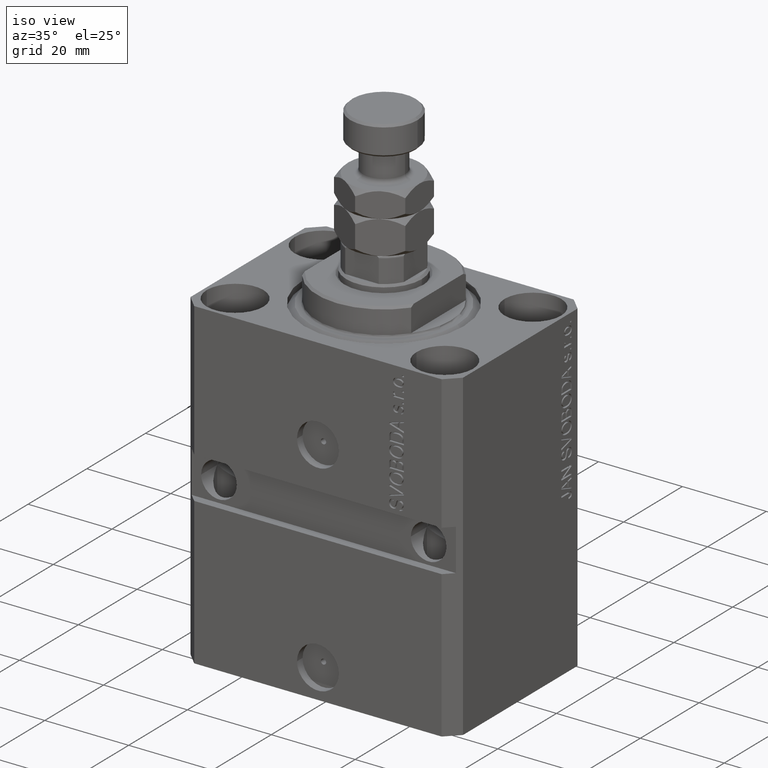
[diagram: clean part render]
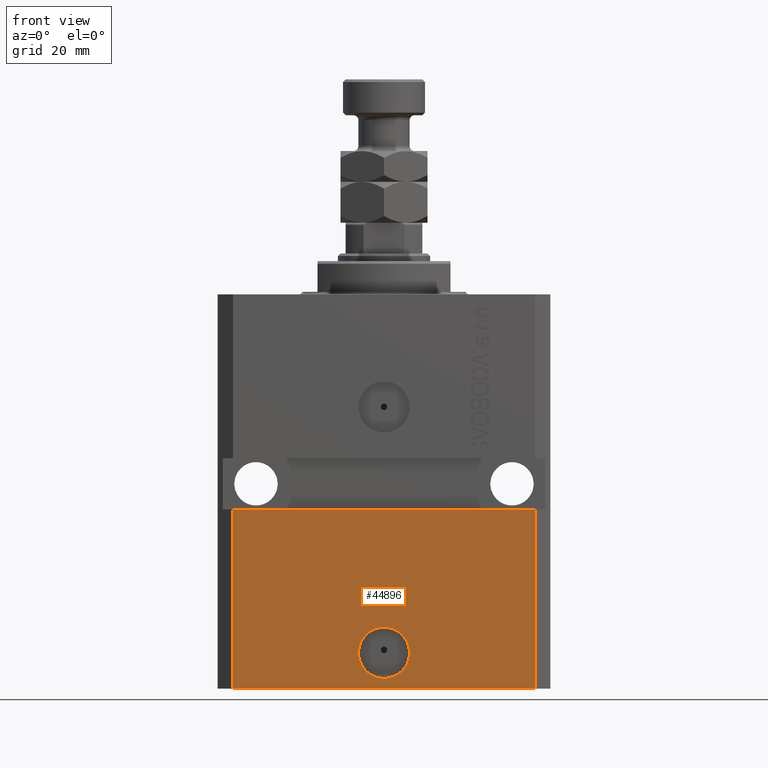
[diagram: tour spotlight — one face highlighted and labeled with its STEP entity id]
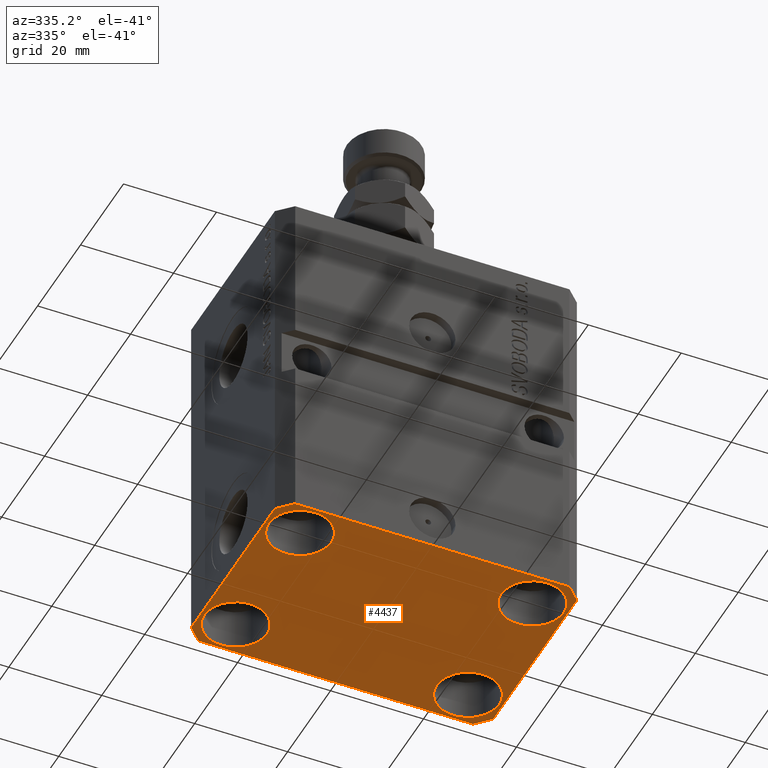
[diagram: tour spotlight — one face highlighted and labeled with its STEP entity id]
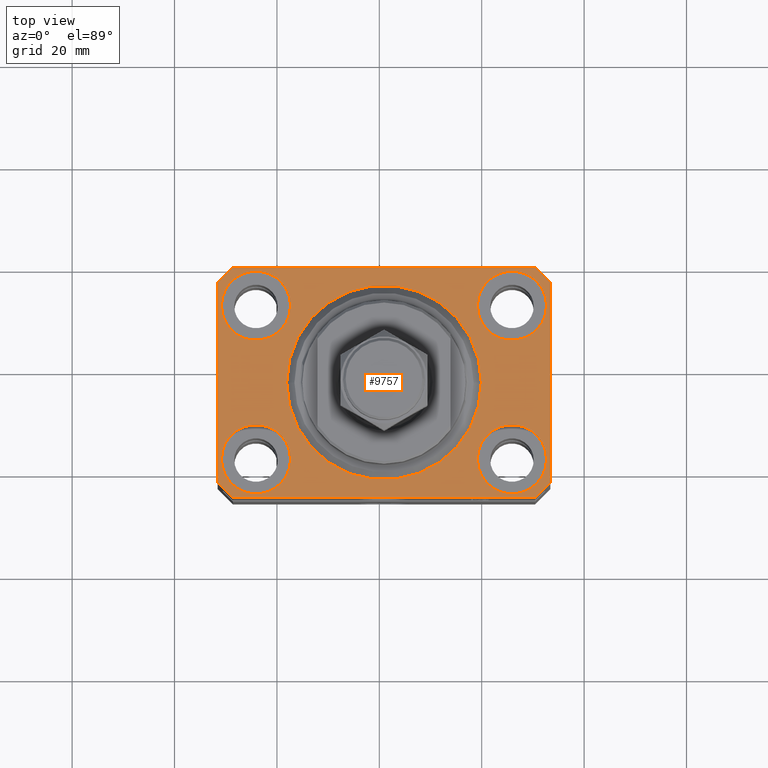
[diagram: tour spotlight — one face highlighted and labeled with its STEP entity id]
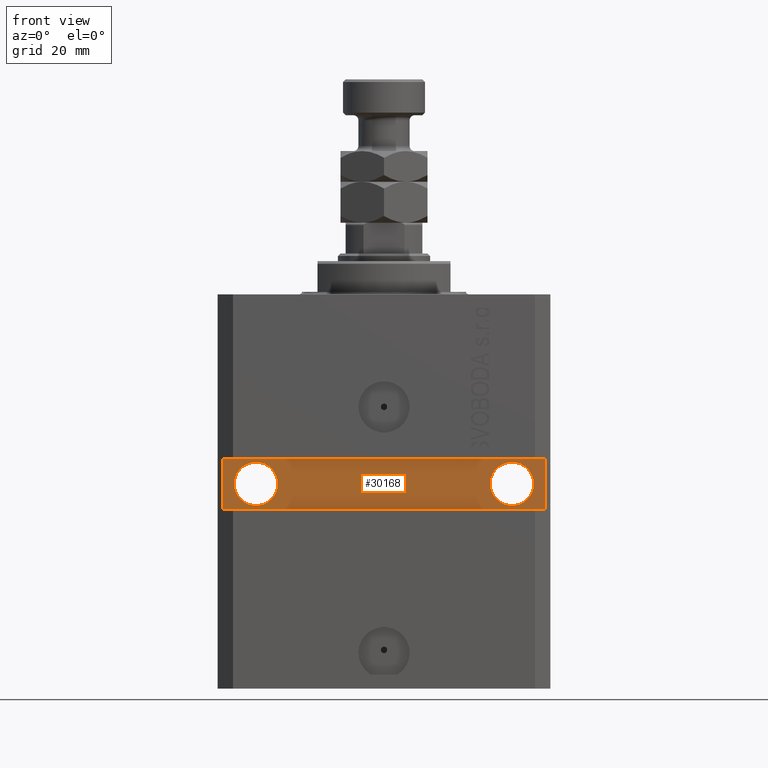
[diagram: tour spotlight — one face highlighted and labeled with its STEP entity id]
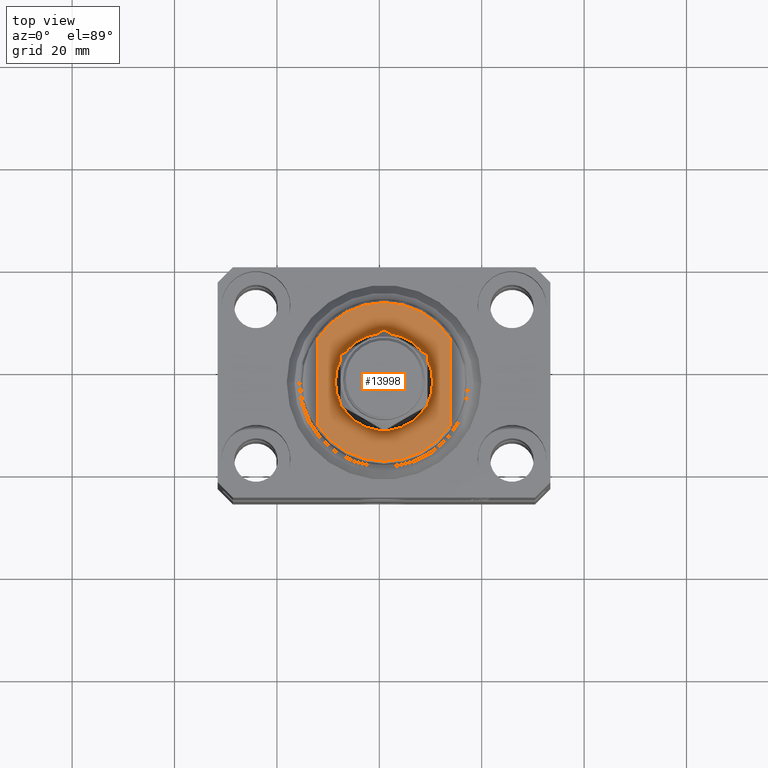
[diagram: tour spotlight — one face highlighted and labeled with its STEP entity id]
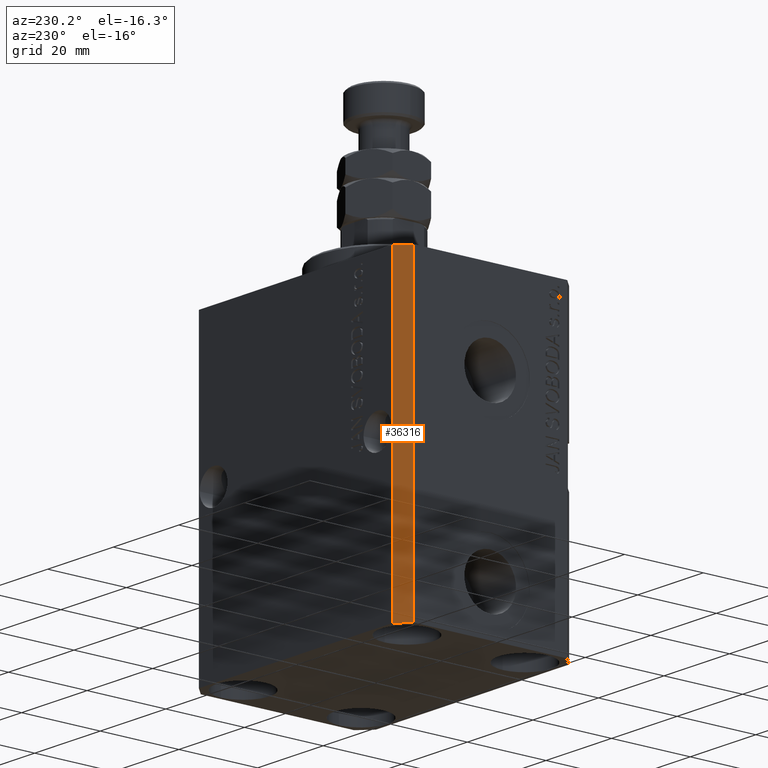
[diagram: tour spotlight — one face highlighted and labeled with its STEP entity id]
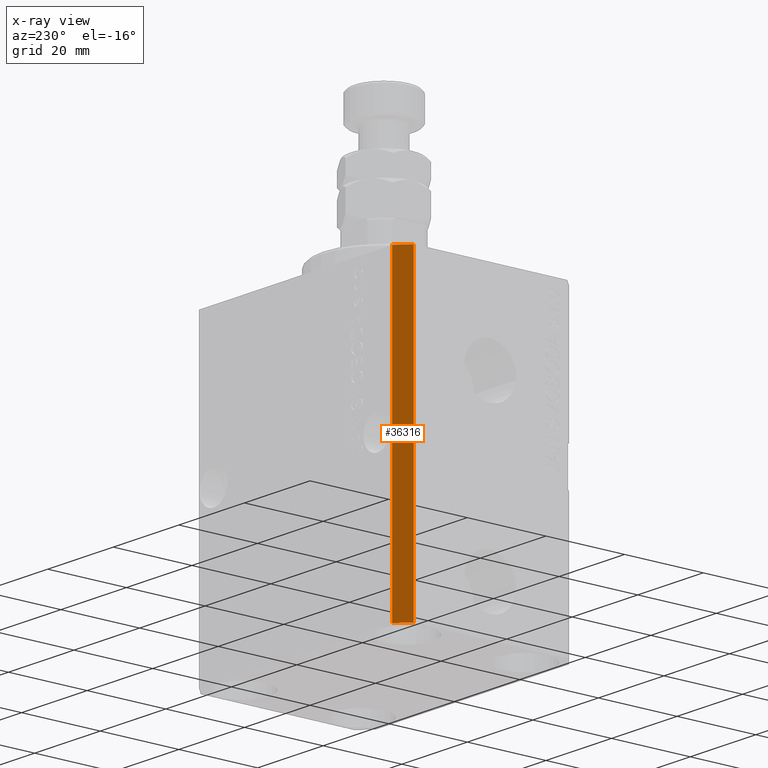
[diagram: x-ray of the same camera — body ghosted, this tour face saturated]
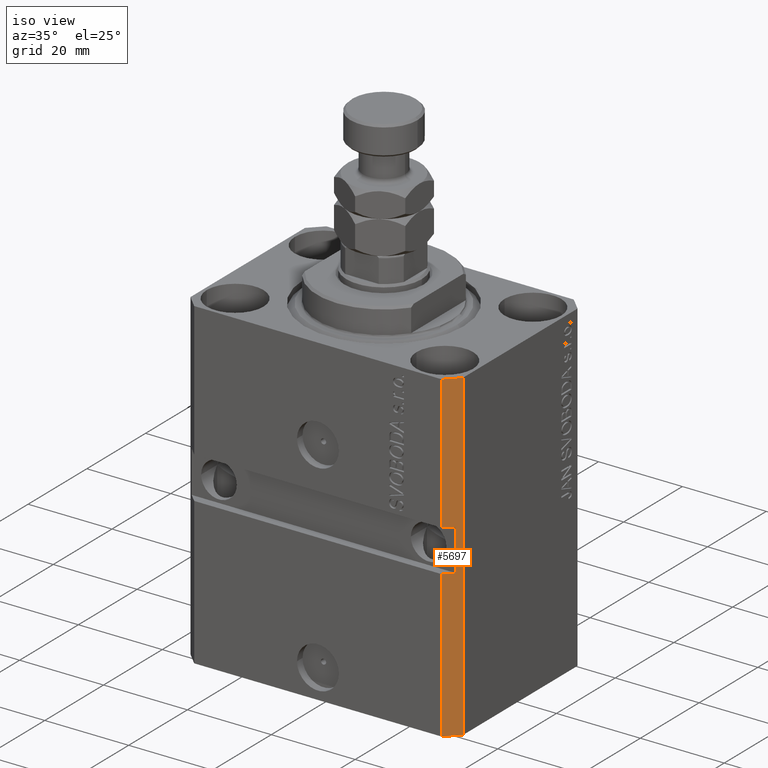
[diagram: tour spotlight — one face highlighted and labeled with its STEP entity id]
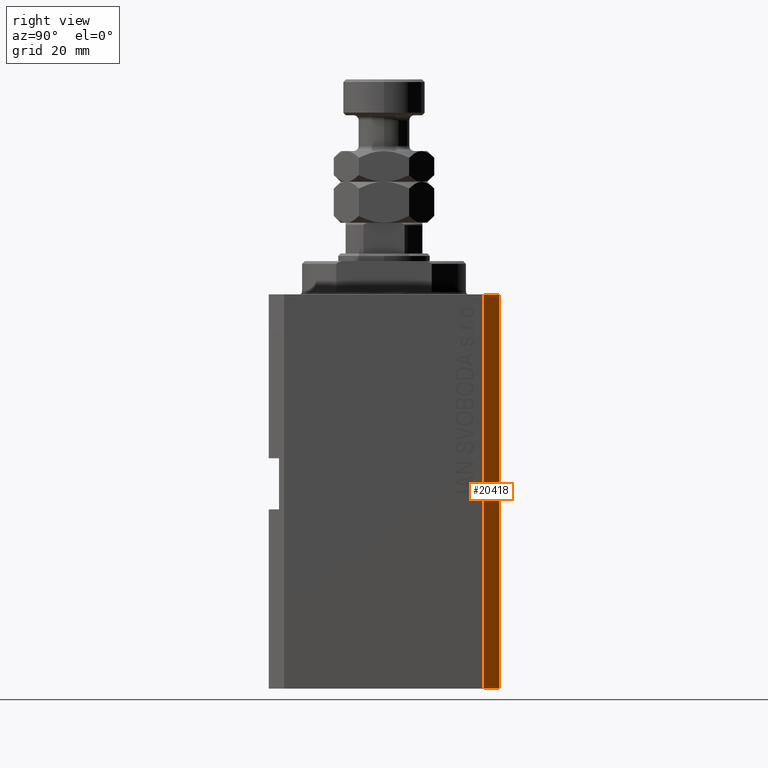
[diagram: tour spotlight — one face highlighted and labeled with its STEP entity id]
A machine part: a face-by-face anatomy tour. The part has 949 B-rep faces; the first image is the clean iso view, then the 8 largest visible faces are spotlighted one at a time (largest first), each with its STEP entity span.

Face 1 — front view, entity #44896. In plain terms, the highlighted planar face has unit normal (0, -1, 0).
Definition (entity closure, byte-faithful):
#996 = VERTEX_POINT ( 'NONE', #22054 ) ;
#1477 = DIRECTION ( 'NONE',  ( 1.000000000000000000, 0.000000000000000000, 0.000000000000000000 ) ) ;
#2216 = VERTEX_POINT ( 'NONE', #4034 ) ;
#3018 = EDGE_CURVE ( 'NONE', #4562, #5914, #34458, .T. ) ;
#3776 = LINE ( 'NONE', #14986, #27370 ) ;
#3929 = AXIS2_PLACEMENT_3D ( 'NONE', #7336, #32704, #1477 ) ;
#4034 = CARTESIAN_POINT ( 'NONE',  ( 29.49999999999650413, -22.49999999999949196, -77.00000000000000000 ) ) ;
#4387 = ORIENTED_EDGE ( 'NONE', *, *, #3018, .F. ) ;
#4562 = VERTEX_POINT ( 'NONE', #12062 ) ;
#4587 = PLANE ( 'NONE',  #5354 ) ;
#5354 = AXIS2_PLACEMENT_3D ( 'NONE', #5510, #36729, #44627 ) ;
#5510 = CARTESIAN_POINT ( 'NONE',  ( -29.49999999999650413, -22.49999999999949907, -77.00000000000000000 ) ) ;
#5914 = VERTEX_POINT ( 'NONE', #42472 ) ;
#6274 = EDGE_CURVE ( 'NONE', #6283, #24711, #43574, .T. ) ;
#6283 = VERTEX_POINT ( 'NONE', #18917 ) ;
#7174 = CARTESIAN_POINT ( 'NONE',  ( -29.49999999999650413, -22.49999999999949907, -77.00000000000000000 ) ) ;
#7336 = CARTESIAN_POINT ( 'NONE',  ( 2.646188353185214061E-15, -22.49999999999949551, -69.99999999999998579 ) ) ;
#8826 = VECTOR ( 'NONE', #31863, 1000.000000000000000 ) ;
#8882 = CARTESIAN_POINT ( 'NONE',  ( -32.49999999999650413, -22.49999999999949907, -41.99999999999999289 ) ) ;
#11542 = LINE ( 'NONE', #35754, #22076 ) ;
#12062 = CARTESIAN_POINT ( 'NONE',  ( -5.000000000000002665, -22.49999999999949551, -69.99999999999998579 ) ) ;
#13593 = CIRCLE ( 'NONE', #3929, 5.000000000000005329 ) ;
#14593 = DIRECTION ( 'NONE',  ( 0.000000000000000000, 0.000000000000000000, 1.000000000000000000 ) ) ;
#14951 = CARTESIAN_POINT ( 'NONE',  ( 29.49999999999650058, -22.49999999999949196, -41.99999999999998579 ) ) ;
#14986 = CARTESIAN_POINT ( 'NONE',  ( -29.49999999999650413, -22.49999999999949907, -77.00000000000000000 ) ) ;
#15295 = EDGE_CURVE ( 'NONE', #5914, #4562, #13593, .T. ) ;
#18917 = CARTESIAN_POINT ( 'NONE',  ( -29.49999999999650413, -22.49999999999949907, -41.99999999999999289 ) ) ;
#19061 = FACE_BOUND ( 'NONE', #23248, .T. ) ;
#20347 = EDGE_LOOP ( 'NONE', ( #26762, #43331, #32593, #28972 ) ) ;
#22054 = CARTESIAN_POINT ( 'NONE',  ( -29.49999999999650413, -22.49999999999949907, -77.00000000000000000 ) ) ;
#22076 = VECTOR ( 'NONE', #14593, 1000.000000000000000 ) ;
#23248 = EDGE_LOOP ( 'NONE', ( #30827, #4387 ) ) ;
#24711 = VERTEX_POINT ( 'NONE', #14951 ) ;
#26762 = ORIENTED_EDGE ( 'NONE', *, *, #6274, .F. ) ;
#27370 = VECTOR ( 'NONE', #28962, 1000.000000000000000 ) ;
#28315 = EDGE_CURVE ( 'NONE', #2216, #24711, #11542, .T. ) ;
#28962 = DIRECTION ( 'NONE',  ( 1.000000000000000000, 1.176083712526788232E-16, 0.000000000000000000 ) ) ;
#28972 = ORIENTED_EDGE ( 'NONE', *, *, #28315, .T. ) ;
#30827 = ORIENTED_EDGE ( 'NONE', *, *, #15295, .F. ) ;
#31863 = DIRECTION ( 'NONE',  ( 0.000000000000000000, 0.000000000000000000, 1.000000000000000000 ) ) ;
#32593 = ORIENTED_EDGE ( 'NONE', *, *, #35321, .T. ) ;
#32704 = DIRECTION ( 'NONE',  ( 1.176083712526788232E-16, -1.000000000000000000, 0.000000000000000000 ) ) ;
#32966 = EDGE_CURVE ( 'NONE', #996, #6283, #38839, .T. ) ;
#33912 = FACE_OUTER_BOUND ( 'NONE', #20347, .T. ) ;
#34458 = CIRCLE ( 'NONE', #38175, 5.000000000000005329 ) ;
#34628 = CARTESIAN_POINT ( 'NONE',  ( 2.646188353185214061E-15, -22.49999999999949551, -69.99999999999998579 ) ) ;
#34853 = DIRECTION ( 'NONE',  ( 1.000000000000000000, 0.000000000000000000, 0.000000000000000000 ) ) ;
#35321 = EDGE_CURVE ( 'NONE', #996, #2216, #3776, .T. ) ;
#35754 = CARTESIAN_POINT ( 'NONE',  ( 29.49999999999650413, -22.49999999999949196, -77.00000000000000000 ) ) ;
#36729 = DIRECTION ( 'NONE',  ( 1.176083712526788232E-16, -1.000000000000000000, 0.000000000000000000 ) ) ;
#38175 = AXIS2_PLACEMENT_3D ( 'NONE', #34628, #38341, #34853 ) ;
#38341 = DIRECTION ( 'NONE',  ( 1.176083712526788232E-16, -1.000000000000000000, 0.000000000000000000 ) ) ;
#38839 = LINE ( 'NONE', #7174, #8826 ) ;
#40518 = VECTOR ( 'NONE', #44265, 1000.000000000000000 ) ;
#42472 = CARTESIAN_POINT ( 'NONE',  ( 5.000000000000007994, -22.49999999999949551, -69.99999999999998579 ) ) ;
#43331 = ORIENTED_EDGE ( 'NONE', *, *, #32966, .F. ) ;
#43574 = LINE ( 'NONE', #8882, #40518 ) ;
#44265 = DIRECTION ( 'NONE',  ( 1.000000000000000000, 1.067522139062765303E-16, 1.067522139062765303E-16 ) ) ;
#44627 = DIRECTION ( 'NONE',  ( 1.000000000000000000, 1.176083712526788232E-16, 0.000000000000000000 ) ) ;
#44896 = ADVANCED_FACE ( 'NONE', ( #19061, #33912 ), #4587, .T. ) ;

Face 2 — auxiliary view, entity #4437. In plain terms, the highlighted planar face has unit normal (0, 0, 1).
Definition (entity closure, byte-faithful):
#64 = ORIENTED_EDGE ( 'NONE', *, *, #22276, .F. ) ;
#457 = CARTESIAN_POINT ( 'NONE',  ( 32.49999999999651124, -19.49999999999949196, -77.00000000000000000 ) ) ;
#896 = LINE ( 'NONE', #32361, #26458 ) ;
#931 = PLANE ( 'NONE',  #41941 ) ;
#996 = VERTEX_POINT ( 'NONE', #22054 ) ;
#1277 = CARTESIAN_POINT ( 'NONE',  ( 29.49999999999707967, 22.49999999999951328, -77.00000000000000000 ) ) ;
#2180 = CARTESIAN_POINT ( 'NONE',  ( -25.00000000000000355, -15.00000000000000000, -77.00000000000000000 ) ) ;
#2216 = VERTEX_POINT ( 'NONE', #4034 ) ;
#2244 = EDGE_LOOP ( 'NONE', ( #16873, #10188 ) ) ;
#2504 = VERTEX_POINT ( 'NONE', #37251 ) ;
#2696 = CARTESIAN_POINT ( 'NONE',  ( 32.49999999999702993, 19.49999999999945999, -77.00000000000000000 ) ) ;
#2947 = DIRECTION ( 'NONE',  ( 1.334402673828349134E-14, 1.000000000000000000, 0.000000000000000000 ) ) ;
#3102 = CARTESIAN_POINT ( 'NONE',  ( -32.49999999999650413, -19.49999999999949907, -77.00000000000000000 ) ) ;
#3776 = LINE ( 'NONE', #14986, #27370 ) ;
#4034 = CARTESIAN_POINT ( 'NONE',  ( 29.49999999999650413, -22.49999999999949196, -77.00000000000000000 ) ) ;
#4136 = CARTESIAN_POINT ( 'NONE',  ( 24.99999999999999645, 15.00000000000000888, -77.00000000000000000 ) ) ;
#4161 = DIRECTION ( 'NONE',  ( 1.000000000000000000, 0.000000000000000000, 0.000000000000000000 ) ) ;
#4232 = CIRCLE ( 'NONE', #36221, 6.749999999958452790 ) ;
#4332 = CIRCLE ( 'NONE', #19977, 6.749999999958452790 ) ;
#4393 = DIRECTION ( 'NONE',  ( -0.000000000000000000, -0.000000000000000000, 1.000000000000000000 ) ) ;
#4437 = ADVANCED_FACE ( 'NONE', ( #40148, #8249, #25199, #29144, #22167 ), #931, .F. ) ;
#5117 = AXIS2_PLACEMENT_3D ( 'NONE', #26092, #25633, #7473 ) ;
#5236 = DIRECTION ( 'NONE',  ( -0.000000000000000000, -0.000000000000000000, 1.000000000000000000 ) ) ;
#5629 = VERTEX_POINT ( 'NONE', #37720 ) ;
#5976 = DIRECTION ( 'NONE',  ( 1.000000000000000000, 0.000000000000000000, 0.000000000000000000 ) ) ;
#6193 = DIRECTION ( 'NONE',  ( -0.7071067811865352493, 0.7071067811865597852, 0.000000000000000000 ) ) ;
#6455 = CARTESIAN_POINT ( 'NONE',  ( 32.49999999999651124, -19.49999999999949196, -77.00000000000000000 ) ) ;
#6637 = ORIENTED_EDGE ( 'NONE', *, *, #23652, .T. ) ;
#7034 = EDGE_LOOP ( 'NONE', ( #23832, #18329, #42747, #14229, #14389, #30577, #64, #16003 ) ) ;
#7306 = VECTOR ( 'NONE', #11417, 1000.000000000000000 ) ;
#7473 = DIRECTION ( 'NONE',  ( 1.000000000000000000, 0.000000000000000000, 0.000000000000000000 ) ) ;
#7918 = DIRECTION ( 'NONE',  ( -0.7071067811865474617, -0.7071067811865474617, 0.000000000000000000 ) ) ;
#7926 = CARTESIAN_POINT ( 'NONE',  ( 29.49999999999650413, -22.49999999999949196, -77.00000000000000000 ) ) ;
#8249 = FACE_BOUND ( 'NONE', #32205, .T. ) ;
#9125 = DIRECTION ( 'NONE',  ( 0.000000000000000000, -1.000000000000000000, 0.000000000000000000 ) ) ;
#9478 = CIRCLE ( 'NONE', #22902, 6.750000000022533087 ) ;
#10188 = ORIENTED_EDGE ( 'NONE', *, *, #29655, .T. ) ;
#10610 = VERTEX_POINT ( 'NONE', #457 ) ;
#11417 = DIRECTION ( 'NONE',  ( 0.7071067811865483499, 0.7071067811865466846, 0.000000000000000000 ) ) ;
#11592 = AXIS2_PLACEMENT_3D ( 'NONE', #37192, #23250, #5976 ) ;
#11886 = ORIENTED_EDGE ( 'NONE', *, *, #30570, .T. ) ;
#11943 = EDGE_CURVE ( 'NONE', #13341, #22690, #44626, .T. ) ;
#12902 = DIRECTION ( 'NONE',  ( 1.000000000000000000, 0.000000000000000000, 0.000000000000000000 ) ) ;
#13083 = CIRCLE ( 'NONE', #11592, 6.749999999977465137 ) ;
#13220 = LINE ( 'NONE', #6455, #22134 ) ;
#13341 = VERTEX_POINT ( 'NONE', #23031 ) ;
#13490 = EDGE_CURVE ( 'NONE', #10610, #13341, #13220, .T. ) ;
#13777 = EDGE_LOOP ( 'NONE', ( #39592, #11886 ) ) ;
#14011 = ORIENTED_EDGE ( 'NONE', *, *, #37865, .T. ) ;
#14229 = ORIENTED_EDGE ( 'NONE', *, *, #31823, .F. ) ;
#14389 = ORIENTED_EDGE ( 'NONE', *, *, #35321, .F. ) ;
#14651 = DIRECTION ( 'NONE',  ( 1.000000000000000000, 0.000000000000000000, 0.000000000000000000 ) ) ;
#14986 = CARTESIAN_POINT ( 'NONE',  ( -29.49999999999650413, -22.49999999999949907, -77.00000000000000000 ) ) ;
#15894 = DIRECTION ( 'NONE',  ( 1.000000000000000000, 0.000000000000000000, 0.000000000000000000 ) ) ;
#16003 = ORIENTED_EDGE ( 'NONE', *, *, #26881, .F. ) ;
#16756 = CARTESIAN_POINT ( 'NONE',  ( -18.24999999997747224, 15.00000000000000000, -77.00000000000000000 ) ) ;
#16800 = VECTOR ( 'NONE', #6193, 1000.000000000000000 ) ;
#16873 = ORIENTED_EDGE ( 'NONE', *, *, #33098, .T. ) ;
#17218 = CARTESIAN_POINT ( 'NONE',  ( -31.75000000002253842, 15.00000000000000000, -77.00000000000000000 ) ) ;
#17670 = CARTESIAN_POINT ( 'NONE',  ( -31.75000000004154899, -15.00000000000000000, -77.00000000000000000 ) ) ;
#17836 = VERTEX_POINT ( 'NONE', #17670 ) ;
#18329 = ORIENTED_EDGE ( 'NONE', *, *, #11943, .F. ) ;
#18354 = VERTEX_POINT ( 'NONE', #29406 ) ;
#18953 = VECTOR ( 'NONE', #9125, 1000.000000000000000 ) ;
#19462 = LINE ( 'NONE', #25754, #41957 ) ;
#19528 = VERTEX_POINT ( 'NONE', #30380 ) ;
#19629 = DIRECTION ( 'NONE',  ( -0.000000000000000000, -0.000000000000000000, 1.000000000000000000 ) ) ;
#19977 = AXIS2_PLACEMENT_3D ( 'NONE', #4136, #22323, #14651 ) ;
#20841 = LINE ( 'NONE', #3102, #44584 ) ;
#22054 = CARTESIAN_POINT ( 'NONE',  ( -29.49999999999650413, -22.49999999999949907, -77.00000000000000000 ) ) ;
#22134 = VECTOR ( 'NONE', #2947, 1000.000000000000000 ) ;
#22167 = FACE_OUTER_BOUND ( 'NONE', #7034, .T. ) ;
#22276 = EDGE_CURVE ( 'NONE', #2504, #42509, #30549, .T. ) ;
#22323 = DIRECTION ( 'NONE',  ( -0.000000000000000000, -0.000000000000000000, 1.000000000000000000 ) ) ;
#22415 = DIRECTION ( 'NONE',  ( -0.000000000000000000, -0.000000000000000000, 1.000000000000000000 ) ) ;
#22690 = VERTEX_POINT ( 'NONE', #1277 ) ;
#22701 = EDGE_CURVE ( 'NONE', #22690, #35535, #19462, .T. ) ;
#22902 = AXIS2_PLACEMENT_3D ( 'NONE', #37504, #22415, #30078 ) ;
#23031 = CARTESIAN_POINT ( 'NONE',  ( 32.49999999999702993, 19.49999999999945999, -77.00000000000000000 ) ) ;
#23250 = DIRECTION ( 'NONE',  ( -0.000000000000000000, -0.000000000000000000, 1.000000000000000000 ) ) ;
#23291 = VERTEX_POINT ( 'NONE', #33976 ) ;
#23652 = EDGE_CURVE ( 'NONE', #5629, #17836, #36051, .T. ) ;
#23832 = ORIENTED_EDGE ( 'NONE', *, *, #22701, .F. ) ;
#25199 = FACE_BOUND ( 'NONE', #2244, .T. ) ;
#25633 = DIRECTION ( 'NONE',  ( -0.000000000000000000, -0.000000000000000000, 1.000000000000000000 ) ) ;
#25676 = EDGE_CURVE ( 'NONE', #18354, #39761, #13083, .T. ) ;
#25754 = CARTESIAN_POINT ( 'NONE',  ( 29.49999999999707967, 22.49999999999951328, -77.00000000000000000 ) ) ;
#26092 = CARTESIAN_POINT ( 'NONE',  ( 25.00000000000000355, -15.00000000000000000, -77.00000000000000000 ) ) ;
#26458 = VECTOR ( 'NONE', #7918, 1000.000000000000114 ) ;
#26490 = AXIS2_PLACEMENT_3D ( 'NONE', #44042, #19629, #15894 ) ;
#26831 = CARTESIAN_POINT ( 'NONE',  ( -32.49999999999650413, 19.49999999999949907, -77.00000000000000000 ) ) ;
#26881 = EDGE_CURVE ( 'NONE', #35535, #2504, #896, .T. ) ;
#26916 = ORIENTED_EDGE ( 'NONE', *, *, #27427, .T. ) ;
#27144 = AXIS2_PLACEMENT_3D ( 'NONE', #2180, #37808, #12902 ) ;
#27370 = VECTOR ( 'NONE', #28962, 1000.000000000000000 ) ;
#27427 = EDGE_CURVE ( 'NONE', #17836, #5629, #42082, .T. ) ;
#28499 = EDGE_LOOP ( 'NONE', ( #26916, #6637 ) ) ;
#28962 = DIRECTION ( 'NONE',  ( 1.000000000000000000, 1.176083712526788232E-16, 0.000000000000000000 ) ) ;
#29144 = FACE_BOUND ( 'NONE', #13777, .T. ) ;
#29406 = CARTESIAN_POINT ( 'NONE',  ( 31.74999999997746869, -15.00000000000000000, -77.00000000000000000 ) ) ;
#29655 = EDGE_CURVE ( 'NONE', #19528, #23291, #4232, .T. ) ;
#30078 = DIRECTION ( 'NONE',  ( 1.000000000000000000, 0.000000000000000000, 0.000000000000000000 ) ) ;
#30380 = CARTESIAN_POINT ( 'NONE',  ( 31.74999999995845101, 15.00000000000000888, -77.00000000000000000 ) ) ;
#30549 = LINE ( 'NONE', #26831, #18953 ) ;
#30570 = EDGE_CURVE ( 'NONE', #43593, #36656, #9478, .T. ) ;
#30577 = ORIENTED_EDGE ( 'NONE', *, *, #40018, .F. ) ;
#31119 = CIRCLE ( 'NONE', #5117, 6.749999999977465137 ) ;
#31193 = CARTESIAN_POINT ( 'NONE',  ( 18.25000000002253842, -15.00000000000000000, -77.00000000000000000 ) ) ;
#31823 = EDGE_CURVE ( 'NONE', #2216, #10610, #36770, .T. ) ;
#32205 = EDGE_LOOP ( 'NONE', ( #14011, #44610 ) ) ;
#32361 = CARTESIAN_POINT ( 'NONE',  ( -29.49999999999650413, 22.49999999999949907, -77.00000000000000000 ) ) ;
#32847 = DIRECTION ( 'NONE',  ( 1.000000000000000000, 0.000000000000000000, -0.000000000000000000 ) ) ;
#33098 = EDGE_CURVE ( 'NONE', #23291, #19528, #4332, .T. ) ;
#33651 = DIRECTION ( 'NONE',  ( 1.000000000000000000, 0.000000000000000000, 0.000000000000000000 ) ) ;
#33976 = CARTESIAN_POINT ( 'NONE',  ( 18.25000000004154543, 15.00000000000000888, -77.00000000000000000 ) ) ;
#34935 = AXIS2_PLACEMENT_3D ( 'NONE', #37139, #5236, #33651 ) ;
#35321 = EDGE_CURVE ( 'NONE', #996, #2216, #3776, .T. ) ;
#35535 = VERTEX_POINT ( 'NONE', #44448 ) ;
#36051 = CIRCLE ( 'NONE', #27144, 6.750000000041541881 ) ;
#36221 = AXIS2_PLACEMENT_3D ( 'NONE', #39564, #4393, #4161 ) ;
#36656 = VERTEX_POINT ( 'NONE', #17218 ) ;
#36770 = LINE ( 'NONE', #7926, #7306 ) ;
#37139 = CARTESIAN_POINT ( 'NONE',  ( -25.00000000000000355, 15.00000000000000000, -77.00000000000000000 ) ) ;
#37189 = CIRCLE ( 'NONE', #34935, 6.750000000022533087 ) ;
#37192 = CARTESIAN_POINT ( 'NONE',  ( 25.00000000000000355, -15.00000000000000000, -77.00000000000000000 ) ) ;
#37251 = CARTESIAN_POINT ( 'NONE',  ( -32.49999999999650413, 19.49999999999949907, -77.00000000000000000 ) ) ;
#37504 = CARTESIAN_POINT ( 'NONE',  ( -25.00000000000000355, 15.00000000000000000, -77.00000000000000000 ) ) ;
#37720 = CARTESIAN_POINT ( 'NONE',  ( -18.24999999995845812, -15.00000000000000000, -77.00000000000000000 ) ) ;
#37808 = DIRECTION ( 'NONE',  ( -0.000000000000000000, -0.000000000000000000, 1.000000000000000000 ) ) ;
#37865 = EDGE_CURVE ( 'NONE', #39761, #18354, #31119, .T. ) ;
#39349 = CARTESIAN_POINT ( 'NONE',  ( -32.49999999999650413, -19.49999999999949907, -77.00000000000000000 ) ) ;
#39381 = CARTESIAN_POINT ( 'NONE',  ( 0.000000000000000000, 0.000000000000000000, -77.00000000000000000 ) ) ;
#39564 = CARTESIAN_POINT ( 'NONE',  ( 24.99999999999999645, 15.00000000000000888, -77.00000000000000000 ) ) ;
#39592 = ORIENTED_EDGE ( 'NONE', *, *, #40653, .T. ) ;
#39761 = VERTEX_POINT ( 'NONE', #31193 ) ;
#40018 = EDGE_CURVE ( 'NONE', #42509, #996, #20841, .T. ) ;
#40148 = FACE_BOUND ( 'NONE', #28499, .T. ) ;
#40653 = EDGE_CURVE ( 'NONE', #36656, #43593, #37189, .T. ) ;
#41941 = AXIS2_PLACEMENT_3D ( 'NONE', #39381, #43104, #32847 ) ;
#41957 = VECTOR ( 'NONE', #43662, 1000.000000000000000 ) ;
#42082 = CIRCLE ( 'NONE', #26490, 6.750000000041541881 ) ;
#42509 = VERTEX_POINT ( 'NONE', #39349 ) ;
#42747 = ORIENTED_EDGE ( 'NONE', *, *, #13490, .F. ) ;
#43104 = DIRECTION ( 'NONE',  ( 0.000000000000000000, 0.000000000000000000, 1.000000000000000000 ) ) ;
#43593 = VERTEX_POINT ( 'NONE', #16756 ) ;
#43662 = DIRECTION ( 'NONE',  ( -1.000000000000000000, -2.352167425053553784E-16, 0.000000000000000000 ) ) ;
#44042 = CARTESIAN_POINT ( 'NONE',  ( -25.00000000000000355, -15.00000000000000000, -77.00000000000000000 ) ) ;
#44448 = CARTESIAN_POINT ( 'NONE',  ( -29.49999999999650413, 22.49999999999949907, -77.00000000000000000 ) ) ;
#44584 = VECTOR ( 'NONE', #45277, 1000.000000000000114 ) ;
#44610 = ORIENTED_EDGE ( 'NONE', *, *, #25676, .T. ) ;
#44626 = LINE ( 'NONE', #2696, #16800 ) ;
#45277 = DIRECTION ( 'NONE',  ( 0.7071067811865474617, -0.7071067811865474617, 0.000000000000000000 ) ) ;

Face 3 — top view, entity #9757. In plain terms, the highlighted planar face has unit normal (0, 0, 1).
Definition (entity closure, byte-faithful):
#10 = CARTESIAN_POINT ( 'NONE',  ( 18.25000000002253842, -15.00000000000000000, 0.000000000000000000 ) ) ;
#144 = DIRECTION ( 'NONE',  ( -1.000000000000000000, -2.352167425053553784E-16, 0.000000000000000000 ) ) ;
#372 = CIRCLE ( 'NONE', #44268, 19.00000000000000000 ) ;
#618 = VERTEX_POINT ( 'NONE', #11605 ) ;
#1901 = LINE ( 'NONE', #40572, #44986 ) ;
#2164 = CARTESIAN_POINT ( 'NONE',  ( -32.49999999999650413, 19.49999999999949907, 0.000000000000000000 ) ) ;
#2340 = ORIENTED_EDGE ( 'NONE', *, *, #35559, .T. ) ;
#3249 = DIRECTION ( 'NONE',  ( 1.000000000000000000, 0.000000000000000000, 0.000000000000000000 ) ) ;
#3266 = ORIENTED_EDGE ( 'NONE', *, *, #44645, .F. ) ;
#3320 = VERTEX_POINT ( 'NONE', #14262 ) ;
#3726 = CARTESIAN_POINT ( 'NONE',  ( -25.00000000000000355, 15.00000000000000000, 0.000000000000000000 ) ) ;
#4874 = ORIENTED_EDGE ( 'NONE', *, *, #12535, .F. ) ;
#5186 = CARTESIAN_POINT ( 'NONE',  ( -32.49999999999650413, -19.49999999999949907, 0.000000000000000000 ) ) ;
#5369 = EDGE_LOOP ( 'NONE', ( #17198, #8113, #21436, #23808, #44731, #7794, #2340, #28613 ) ) ;
#5423 = VERTEX_POINT ( 'NONE', #44258 ) ;
#5541 = EDGE_CURVE ( 'NONE', #26090, #43973, #21146, .T. ) ;
#5572 = VECTOR ( 'NONE', #43859, 1000.000000000000114 ) ;
#5859 = CIRCLE ( 'NONE', #39327, 6.750000000022533087 ) ;
#5959 = EDGE_CURVE ( 'NONE', #19064, #40247, #15934, .T. ) ;
#6479 = DIRECTION ( 'NONE',  ( 1.334402673828349134E-14, 1.000000000000000000, 0.000000000000000000 ) ) ;
#6541 = ORIENTED_EDGE ( 'NONE', *, *, #6906, .F. ) ;
#6735 = EDGE_CURVE ( 'NONE', #618, #20238, #32298, .T. ) ;
#6906 = EDGE_CURVE ( 'NONE', #27871, #3320, #372, .T. ) ;
#6907 = EDGE_CURVE ( 'NONE', #3320, #27871, #31641, .T. ) ;
#7721 = EDGE_CURVE ( 'NONE', #43973, #26090, #44996, .T. ) ;
#7794 = ORIENTED_EDGE ( 'NONE', *, *, #37801, .T. ) ;
#7853 = AXIS2_PLACEMENT_3D ( 'NONE', #25786, #33215, #36480 ) ;
#8113 = ORIENTED_EDGE ( 'NONE', *, *, #23855, .T. ) ;
#8328 = AXIS2_PLACEMENT_3D ( 'NONE', #10446, #27236, #9527 ) ;
#9111 = VERTEX_POINT ( 'NONE', #9951 ) ;
#9527 = DIRECTION ( 'NONE',  ( 1.000000000000000000, 0.000000000000000000, 0.000000000000000000 ) ) ;
#9625 = DIRECTION ( 'NONE',  ( 0.000000000000000000, -1.000000000000000000, 0.000000000000000000 ) ) ;
#9757 = ADVANCED_FACE ( 'NONE', ( #11163, #14670, #40016, #39325, #18155, #28870 ), #25144, .T. ) ;
#9851 = DIRECTION ( 'NONE',  ( -0.7071067811865352493, 0.7071067811865597852, 0.000000000000000000 ) ) ;
#9951 = CARTESIAN_POINT ( 'NONE',  ( 29.49999999999650413, -22.49999999999949196, 0.000000000000000000 ) ) ;
#9989 = ORIENTED_EDGE ( 'NONE', *, *, #18590, .F. ) ;
#10082 = LINE ( 'NONE', #2164, #43332 ) ;
#10197 = EDGE_LOOP ( 'NONE', ( #4874, #9989 ) ) ;
#10269 = DIRECTION ( 'NONE',  ( 0.7071067811865483499, 0.7071067811865466846, 0.000000000000000000 ) ) ;
#10297 = DIRECTION ( 'NONE',  ( 1.000000000000000000, 0.000000000000000000, 0.000000000000000000 ) ) ;
#10446 = CARTESIAN_POINT ( 'NONE',  ( 24.99999999999999645, 15.00000000000000888, 0.000000000000000000 ) ) ;
#10952 = CIRCLE ( 'NONE', #12442, 6.749999999958452790 ) ;
#11000 = CARTESIAN_POINT ( 'NONE',  ( 24.99999999999999645, 15.00000000000000888, 0.000000000000000000 ) ) ;
#11123 = DIRECTION ( 'NONE',  ( 1.000000000000000000, 0.000000000000000000, 0.000000000000000000 ) ) ;
#11163 = FACE_BOUND ( 'NONE', #38527, .T. ) ;
#11581 = CARTESIAN_POINT ( 'NONE',  ( 32.49999999999651124, -19.49999999999949196, 0.000000000000000000 ) ) ;
#11605 = CARTESIAN_POINT ( 'NONE',  ( 29.49999999999707967, 22.49999999999951328, 0.000000000000000000 ) ) ;
#11763 = CARTESIAN_POINT ( 'NONE',  ( -32.49999999999650413, 19.49999999999949907, 0.000000000000000000 ) ) ;
#11910 = DIRECTION ( 'NONE',  ( 0.000000000000000000, 0.000000000000000000, 1.000000000000000000 ) ) ;
#12321 = CIRCLE ( 'NONE', #30906, 6.749999999977465137 ) ;
#12442 = AXIS2_PLACEMENT_3D ( 'NONE', #11000, #11910, #25212 ) ;
#12535 = EDGE_CURVE ( 'NONE', #13075, #33991, #12321, .T. ) ;
#13002 = EDGE_CURVE ( 'NONE', #28479, #30829, #10952, .T. ) ;
#13075 = VERTEX_POINT ( 'NONE', #30523 ) ;
#14262 = CARTESIAN_POINT ( 'NONE',  ( -19.00000000000000000, 2.326828918379970970E-15, 0.000000000000000000 ) ) ;
#14490 = EDGE_CURVE ( 'NONE', #40247, #9111, #21328, .T. ) ;
#14670 = FACE_BOUND ( 'NONE', #10197, .T. ) ;
#14710 = CARTESIAN_POINT ( 'NONE',  ( 32.49999999999702993, 19.49999999999945999, 0.000000000000000000 ) ) ;
#14725 = EDGE_CURVE ( 'NONE', #35743, #19064, #10082, .T. ) ;
#15934 = LINE ( 'NONE', #5186, #5572 ) ;
#16109 = CARTESIAN_POINT ( 'NONE',  ( -25.00000000000000355, -15.00000000000000000, 0.000000000000000000 ) ) ;
#17158 = EDGE_LOOP ( 'NONE', ( #6541, #22154 ) ) ;
#17160 = CARTESIAN_POINT ( 'NONE',  ( -29.49999999999650413, 22.49999999999949907, 0.000000000000000000 ) ) ;
#17198 = ORIENTED_EDGE ( 'NONE', *, *, #6735, .T. ) ;
#17959 = DIRECTION ( 'NONE',  ( 1.000000000000000000, 0.000000000000000000, 0.000000000000000000 ) ) ;
#18155 = FACE_BOUND ( 'NONE', #17158, .T. ) ;
#18342 = DIRECTION ( 'NONE',  ( 0.000000000000000000, 0.000000000000000000, 1.000000000000000000 ) ) ;
#18560 = VECTOR ( 'NONE', #6479, 1000.000000000000000 ) ;
#18590 = EDGE_CURVE ( 'NONE', #33991, #13075, #23376, .T. ) ;
#19064 = VERTEX_POINT ( 'NONE', #25570 ) ;
#20221 = VERTEX_POINT ( 'NONE', #45544 ) ;
#20238 = VERTEX_POINT ( 'NONE', #17160 ) ;
#21146 = CIRCLE ( 'NONE', #33033, 6.750000000041541881 ) ;
#21254 = CARTESIAN_POINT ( 'NONE',  ( -25.00000000000000355, -15.00000000000000000, 0.000000000000000000 ) ) ;
#21285 = ORIENTED_EDGE ( 'NONE', *, *, #7721, .F. ) ;
#21328 = LINE ( 'NONE', #32249, #25507 ) ;
#21408 = VECTOR ( 'NONE', #9851, 1000.000000000000000 ) ;
#21436 = ORIENTED_EDGE ( 'NONE', *, *, #14725, .T. ) ;
#22154 = ORIENTED_EDGE ( 'NONE', *, *, #6907, .F. ) ;
#22302 = CARTESIAN_POINT ( 'NONE',  ( -25.00000000000000355, 15.00000000000000000, 0.000000000000000000 ) ) ;
#22469 = CIRCLE ( 'NONE', #8328, 6.749999999958452790 ) ;
#23193 = ORIENTED_EDGE ( 'NONE', *, *, #13002, .F. ) ;
#23376 = CIRCLE ( 'NONE', #35260, 6.749999999977465137 ) ;
#23808 = ORIENTED_EDGE ( 'NONE', *, *, #5959, .T. ) ;
#23855 = EDGE_CURVE ( 'NONE', #20238, #35743, #1901, .T. ) ;
#24940 = AXIS2_PLACEMENT_3D ( 'NONE', #21254, #28238, #10297 ) ;
#25144 = PLANE ( 'NONE',  #34663 ) ;
#25212 = DIRECTION ( 'NONE',  ( 1.000000000000000000, 0.000000000000000000, 0.000000000000000000 ) ) ;
#25271 = ORIENTED_EDGE ( 'NONE', *, *, #37763, .F. ) ;
#25507 = VECTOR ( 'NONE', #39233, 1000.000000000000000 ) ;
#25570 = CARTESIAN_POINT ( 'NONE',  ( -32.49999999999650413, -19.49999999999949907, 0.000000000000000000 ) ) ;
#25786 = CARTESIAN_POINT ( 'NONE',  ( 0.000000000000000000, 0.000000000000000000, 0.000000000000000000 ) ) ;
#25995 = EDGE_CURVE ( 'NONE', #5423, #20221, #36120, .T. ) ;
#26090 = VERTEX_POINT ( 'NONE', #30863 ) ;
#26473 = CARTESIAN_POINT ( 'NONE',  ( 31.74999999995845101, 15.00000000000000888, 0.000000000000000000 ) ) ;
#27236 = DIRECTION ( 'NONE',  ( 0.000000000000000000, 0.000000000000000000, 1.000000000000000000 ) ) ;
#27664 = CARTESIAN_POINT ( 'NONE',  ( 29.49999999999707967, 22.49999999999951328, 0.000000000000000000 ) ) ;
#27871 = VERTEX_POINT ( 'NONE', #35113 ) ;
#28132 = ORIENTED_EDGE ( 'NONE', *, *, #5541, .F. ) ;
#28238 = DIRECTION ( 'NONE',  ( 0.000000000000000000, 0.000000000000000000, 1.000000000000000000 ) ) ;
#28479 = VERTEX_POINT ( 'NONE', #31713 ) ;
#28613 = ORIENTED_EDGE ( 'NONE', *, *, #31357, .T. ) ;
#28870 = FACE_OUTER_BOUND ( 'NONE', #5369, .T. ) ;
#29065 = EDGE_LOOP ( 'NONE', ( #3266, #23193 ) ) ;
#29281 = CARTESIAN_POINT ( 'NONE',  ( 0.000000000000000000, 0.000000000000000000, 0.000000000000000000 ) ) ;
#29398 = VECTOR ( 'NONE', #144, 1000.000000000000000 ) ;
#29822 = CARTESIAN_POINT ( 'NONE',  ( 25.00000000000000355, -15.00000000000000000, 0.000000000000000000 ) ) ;
#30523 = CARTESIAN_POINT ( 'NONE',  ( 31.74999999997746869, -15.00000000000000000, 0.000000000000000000 ) ) ;
#30822 = LINE ( 'NONE', #41751, #21408 ) ;
#30829 = VERTEX_POINT ( 'NONE', #26473 ) ;
#30863 = CARTESIAN_POINT ( 'NONE',  ( -18.24999999995846167, -15.00000000000000000, 0.000000000000000000 ) ) ;
#30906 = AXIS2_PLACEMENT_3D ( 'NONE', #29822, #32844, #36795 ) ;
#31237 = LINE ( 'NONE', #45431, #43786 ) ;
#31357 = EDGE_CURVE ( 'NONE', #37896, #618, #30822, .T. ) ;
#31441 = CARTESIAN_POINT ( 'NONE',  ( 25.00000000000000355, -15.00000000000000000, 0.000000000000000000 ) ) ;
#31641 = CIRCLE ( 'NONE', #7853, 19.00000000000000000 ) ;
#31713 = CARTESIAN_POINT ( 'NONE',  ( 18.25000000004154543, 15.00000000000000888, 0.000000000000000000 ) ) ;
#32249 = CARTESIAN_POINT ( 'NONE',  ( -29.49999999999650413, -22.49999999999949907, 0.000000000000000000 ) ) ;
#32298 = LINE ( 'NONE', #27664, #29398 ) ;
#32796 = CARTESIAN_POINT ( 'NONE',  ( 0.000000000000000000, 0.000000000000000000, 0.000000000000000000 ) ) ;
#32844 = DIRECTION ( 'NONE',  ( 0.000000000000000000, 0.000000000000000000, 1.000000000000000000 ) ) ;
#33033 = AXIS2_PLACEMENT_3D ( 'NONE', #16109, #34696, #41677 ) ;
#33215 = DIRECTION ( 'NONE',  ( 0.000000000000000000, 0.000000000000000000, 1.000000000000000000 ) ) ;
#33991 = VERTEX_POINT ( 'NONE', #10 ) ;
#34566 = VERTEX_POINT ( 'NONE', #11581 ) ;
#34663 = AXIS2_PLACEMENT_3D ( 'NONE', #32796, #43503, #39557 ) ;
#34696 = DIRECTION ( 'NONE',  ( 0.000000000000000000, 0.000000000000000000, 1.000000000000000000 ) ) ;
#34726 = DIRECTION ( 'NONE',  ( 0.000000000000000000, 0.000000000000000000, 1.000000000000000000 ) ) ;
#34835 = CARTESIAN_POINT ( 'NONE',  ( -31.75000000004154899, -15.00000000000000000, 0.000000000000000000 ) ) ;
#35113 = CARTESIAN_POINT ( 'NONE',  ( 19.00000000000000000, 0.000000000000000000, 0.000000000000000000 ) ) ;
#35260 = AXIS2_PLACEMENT_3D ( 'NONE', #31441, #45418, #3249 ) ;
#35559 = EDGE_CURVE ( 'NONE', #34566, #37896, #43985, .T. ) ;
#35743 = VERTEX_POINT ( 'NONE', #11763 ) ;
#36120 = CIRCLE ( 'NONE', #41328, 6.750000000022533087 ) ;
#36476 = DIRECTION ( 'NONE',  ( 1.000000000000000000, 0.000000000000000000, 0.000000000000000000 ) ) ;
#36480 = DIRECTION ( 'NONE',  ( 1.000000000000000000, 0.000000000000000000, 0.000000000000000000 ) ) ;
#36795 = DIRECTION ( 'NONE',  ( 1.000000000000000000, 0.000000000000000000, 0.000000000000000000 ) ) ;
#37763 = EDGE_CURVE ( 'NONE', #20221, #5423, #5859, .T. ) ;
#37801 = EDGE_CURVE ( 'NONE', #9111, #34566, #31237, .T. ) ;
#37896 = VERTEX_POINT ( 'NONE', #14710 ) ;
#37909 = CARTESIAN_POINT ( 'NONE',  ( 32.49999999999651124, -19.49999999999949196, 0.000000000000000000 ) ) ;
#38316 = EDGE_LOOP ( 'NONE', ( #25271, #38575 ) ) ;
#38527 = EDGE_LOOP ( 'NONE', ( #28132, #21285 ) ) ;
#38575 = ORIENTED_EDGE ( 'NONE', *, *, #25995, .F. ) ;
#38626 = CARTESIAN_POINT ( 'NONE',  ( -29.49999999999650413, -22.49999999999949907, 0.000000000000000000 ) ) ;
#39233 = DIRECTION ( 'NONE',  ( 1.000000000000000000, 1.176083712526788232E-16, 0.000000000000000000 ) ) ;
#39325 = FACE_BOUND ( 'NONE', #38316, .T. ) ;
#39327 = AXIS2_PLACEMENT_3D ( 'NONE', #3726, #34726, #17959 ) ;
#39557 = DIRECTION ( 'NONE',  ( 1.000000000000000000, 0.000000000000000000, -0.000000000000000000 ) ) ;
#40016 = FACE_BOUND ( 'NONE', #29065, .T. ) ;
#40247 = VERTEX_POINT ( 'NONE', #38626 ) ;
#40572 = CARTESIAN_POINT ( 'NONE',  ( -29.49999999999650413, 22.49999999999949907, 0.000000000000000000 ) ) ;
#41025 = DIRECTION ( 'NONE',  ( -0.7071067811865474617, -0.7071067811865474617, 0.000000000000000000 ) ) ;
#41328 = AXIS2_PLACEMENT_3D ( 'NONE', #22302, #18342, #36476 ) ;
#41677 = DIRECTION ( 'NONE',  ( 1.000000000000000000, 0.000000000000000000, 0.000000000000000000 ) ) ;
#41751 = CARTESIAN_POINT ( 'NONE',  ( 32.49999999999702993, 19.49999999999945999, 0.000000000000000000 ) ) ;
#43332 = VECTOR ( 'NONE', #9625, 1000.000000000000000 ) ;
#43463 = DIRECTION ( 'NONE',  ( 0.000000000000000000, 0.000000000000000000, 1.000000000000000000 ) ) ;
#43503 = DIRECTION ( 'NONE',  ( 0.000000000000000000, 0.000000000000000000, 1.000000000000000000 ) ) ;
#43786 = VECTOR ( 'NONE', #10269, 1000.000000000000000 ) ;
#43859 = DIRECTION ( 'NONE',  ( 0.7071067811865474617, -0.7071067811865474617, 0.000000000000000000 ) ) ;
#43973 = VERTEX_POINT ( 'NONE', #34835 ) ;
#43985 = LINE ( 'NONE', #37909, #18560 ) ;
#44258 = CARTESIAN_POINT ( 'NONE',  ( -31.75000000002253842, 15.00000000000000000, 0.000000000000000000 ) ) ;
#44268 = AXIS2_PLACEMENT_3D ( 'NONE', #29281, #43463, #11123 ) ;
#44645 = EDGE_CURVE ( 'NONE', #30829, #28479, #22469, .T. ) ;
#44731 = ORIENTED_EDGE ( 'NONE', *, *, #14490, .T. ) ;
#44986 = VECTOR ( 'NONE', #41025, 1000.000000000000114 ) ;
#44996 = CIRCLE ( 'NONE', #24940, 6.750000000041541881 ) ;
#45418 = DIRECTION ( 'NONE',  ( 0.000000000000000000, 0.000000000000000000, 1.000000000000000000 ) ) ;
#45431 = CARTESIAN_POINT ( 'NONE',  ( 29.49999999999650413, -22.49999999999949196, 0.000000000000000000 ) ) ;
#45544 = CARTESIAN_POINT ( 'NONE',  ( -18.24999999997747224, 15.00000000000000000, 0.000000000000000000 ) ) ;

Face 4 — front view, entity #30168. In plain terms, the highlighted planar face has unit normal (0, -1, 0).
Definition (entity closure, byte-faithful):
#256 = DIRECTION ( 'NONE',  ( 1.101411730780568590E-16, -1.000000000000000000, 0.000000000000000000 ) ) ;
#481 = DIRECTION ( 'NONE',  ( 1.000000000000000000, 1.067522139062765303E-16, 1.067522139062765303E-16 ) ) ;
#854 = AXIS2_PLACEMENT_3D ( 'NONE', #43997, #15848, #19580 ) ;
#1100 = ORIENTED_EDGE ( 'NONE', *, *, #20864, .F. ) ;
#1761 = AXIS2_PLACEMENT_3D ( 'NONE', #10280, #24502, #21005 ) ;
#2489 = CIRCLE ( 'NONE', #1761, 4.249999999993782751 ) ;
#2586 = LINE ( 'NONE', #9590, #4032 ) ;
#4032 = VECTOR ( 'NONE', #16374, 1000.000000000000000 ) ;
#4050 = DIRECTION ( 'NONE',  ( 1.000000000000000000, 1.067522139062765303E-16, 0.000000000000000000 ) ) ;
#4671 = CARTESIAN_POINT ( 'NONE',  ( -24.99999999999999289, -20.49999999999950262, -37.00000000000000000 ) ) ;
#5258 = VERTEX_POINT ( 'NONE', #43392 ) ;
#6322 = VERTEX_POINT ( 'NONE', #26357 ) ;
#7584 = VERTEX_POINT ( 'NONE', #33141 ) ;
#8267 = EDGE_CURVE ( 'NONE', #40702, #16401, #16048, .T. ) ;
#8866 = VERTEX_POINT ( 'NONE', #27726 ) ;
#9590 = CARTESIAN_POINT ( 'NONE',  ( 32.49999999999650413, -20.49999999999949196, -32.00000000000000711 ) ) ;
#9658 = CARTESIAN_POINT ( 'NONE',  ( -31.49999999999650413, -20.49999999999949907, -41.99999999999999289 ) ) ;
#10280 = CARTESIAN_POINT ( 'NONE',  ( -24.99999999999999289, -20.49999999999950262, -37.00000000000000000 ) ) ;
#11981 = EDGE_LOOP ( 'NONE', ( #1100, #20071 ) ) ;
#13912 = AXIS2_PLACEMENT_3D ( 'NONE', #39689, #43399, #4050 ) ;
#15446 = CARTESIAN_POINT ( 'NONE',  ( 20.75000000001095657, -20.49999999999949551, -36.99999999999999289 ) ) ;
#15848 = DIRECTION ( 'NONE',  ( 1.394545208792185644E-16, -1.000000000000000000, 1.232595164407830946E-32 ) ) ;
#16048 = LINE ( 'NONE', #30237, #32410 ) ;
#16374 = DIRECTION ( 'NONE',  ( -1.000000000000000000, -1.067522139062765303E-16, 1.067522139062765303E-16 ) ) ;
#16401 = VERTEX_POINT ( 'NONE', #17551 ) ;
#16483 = DIRECTION ( 'NONE',  ( 0.000000000000000000, 0.000000000000000000, -1.000000000000000000 ) ) ;
#17113 = ORIENTED_EDGE ( 'NONE', *, *, #44509, .F. ) ;
#17551 = CARTESIAN_POINT ( 'NONE',  ( -31.49999999999650413, -20.49999999999950262, -32.00000000000000000 ) ) ;
#19479 = CIRCLE ( 'NONE', #854, 4.249999999989050536 ) ;
#19580 = DIRECTION ( 'NONE',  ( 1.000000000000000000, 0.000000000000000000, 0.000000000000000000 ) ) ;
#19791 = ORIENTED_EDGE ( 'NONE', *, *, #39161, .F. ) ;
#20071 = ORIENTED_EDGE ( 'NONE', *, *, #41812, .F. ) ;
#20210 = LINE ( 'NONE', #23470, #31921 ) ;
#20405 = EDGE_CURVE ( 'NONE', #36089, #6322, #32332, .T. ) ;
#20651 = ORIENTED_EDGE ( 'NONE', *, *, #20405, .F. ) ;
#20864 = EDGE_CURVE ( 'NONE', #5258, #7584, #2489, .T. ) ;
#21005 = DIRECTION ( 'NONE',  ( 1.000000000000000000, 0.000000000000000000, 0.000000000000000000 ) ) ;
#21785 = PLANE ( 'NONE',  #13912 ) ;
#22989 = EDGE_CURVE ( 'NONE', #24893, #16401, #2586, .T. ) ;
#23470 = CARTESIAN_POINT ( 'NONE',  ( 31.49999999999651124, -20.49999999999949551, -77.00000000000000000 ) ) ;
#24164 = AXIS2_PLACEMENT_3D ( 'NONE', #30391, #41085, #36908 ) ;
#24502 = DIRECTION ( 'NONE',  ( 1.101411730780568590E-16, -1.000000000000000000, 0.000000000000000000 ) ) ;
#24893 = VERTEX_POINT ( 'NONE', #41888 ) ;
#25039 = FACE_OUTER_BOUND ( 'NONE', #29847, .T. ) ;
#25275 = FACE_BOUND ( 'NONE', #45267, .T. ) ;
#26357 = CARTESIAN_POINT ( 'NONE',  ( 29.24999999998905764, -20.49999999999949551, -36.99999999999999289 ) ) ;
#27577 = CIRCLE ( 'NONE', #28304, 4.249999999993782751 ) ;
#27726 = CARTESIAN_POINT ( 'NONE',  ( 31.49999999999650413, -20.49999999999949196, -41.99999999999998579 ) ) ;
#28304 = AXIS2_PLACEMENT_3D ( 'NONE', #4671, #256, #28470 ) ;
#28470 = DIRECTION ( 'NONE',  ( 1.000000000000000000, 0.000000000000000000, 0.000000000000000000 ) ) ;
#29847 = EDGE_LOOP ( 'NONE', ( #32706, #33285, #41086, #19791 ) ) ;
#30168 = ADVANCED_FACE ( 'NONE', ( #25275, #42949, #25039 ), #21785, .T. ) ;
#30237 = CARTESIAN_POINT ( 'NONE',  ( -31.49999999999650413, -20.49999999999950262, -77.00000000000000000 ) ) ;
#30391 = CARTESIAN_POINT ( 'NONE',  ( 25.00000000000000711, -20.49999999999949551, -36.99999999999999289 ) ) ;
#31472 = LINE ( 'NONE', #45674, #45338 ) ;
#31921 = VECTOR ( 'NONE', #16483, 1000.000000000000000 ) ;
#32332 = CIRCLE ( 'NONE', #24164, 4.249999999989050536 ) ;
#32410 = VECTOR ( 'NONE', #43959, 1000.000000000000000 ) ;
#32706 = ORIENTED_EDGE ( 'NONE', *, *, #22989, .T. ) ;
#33141 = CARTESIAN_POINT ( 'NONE',  ( -29.24999999999377920, -20.49999999999950262, -37.00000000000000000 ) ) ;
#33285 = ORIENTED_EDGE ( 'NONE', *, *, #8267, .F. ) ;
#36089 = VERTEX_POINT ( 'NONE', #15446 ) ;
#36908 = DIRECTION ( 'NONE',  ( 1.000000000000000000, 0.000000000000000000, 0.000000000000000000 ) ) ;
#39161 = EDGE_CURVE ( 'NONE', #24893, #8866, #20210, .T. ) ;
#39594 = EDGE_CURVE ( 'NONE', #40702, #8866, #31472, .T. ) ;
#39689 = CARTESIAN_POINT ( 'NONE',  ( 2.166708070385810581E-15, -20.49999999999949907, 0.000000000000000000 ) ) ;
#40702 = VERTEX_POINT ( 'NONE', #9658 ) ;
#41085 = DIRECTION ( 'NONE',  ( 1.394545208792185644E-16, -1.000000000000000000, 1.232595164407830946E-32 ) ) ;
#41086 = ORIENTED_EDGE ( 'NONE', *, *, #39594, .T. ) ;
#41812 = EDGE_CURVE ( 'NONE', #7584, #5258, #27577, .T. ) ;
#41888 = CARTESIAN_POINT ( 'NONE',  ( 31.49999999999651124, -20.49999999999949196, -32.00000000000000711 ) ) ;
#42949 = FACE_BOUND ( 'NONE', #11981, .T. ) ;
#43392 = CARTESIAN_POINT ( 'NONE',  ( -20.75000000000621014, -20.49999999999950262, -37.00000000000000000 ) ) ;
#43399 = DIRECTION ( 'NONE',  ( 1.067522139062765303E-16, -1.000000000000000000, 0.000000000000000000 ) ) ;
#43959 = DIRECTION ( 'NONE',  ( 0.000000000000000000, 0.000000000000000000, 1.000000000000000000 ) ) ;
#43997 = CARTESIAN_POINT ( 'NONE',  ( 25.00000000000000711, -20.49999999999949551, -36.99999999999999289 ) ) ;
#44509 = EDGE_CURVE ( 'NONE', #6322, #36089, #19479, .T. ) ;
#45267 = EDGE_LOOP ( 'NONE', ( #17113, #20651 ) ) ;
#45338 = VECTOR ( 'NONE', #481, 1000.000000000000000 ) ;
#45674 = CARTESIAN_POINT ( 'NONE',  ( -32.49999999999650413, -20.49999999999949907, -41.99999999999999289 ) ) ;

Face 5 — top view, entity #13998. In plain terms, the highlighted planar face has unit normal (0, 0, 1).
Definition (entity closure, byte-faithful):
#747 = CARTESIAN_POINT ( 'NONE',  ( 0.000000000000000000, 0.000000000000000000, -6.500000000000000000 ) ) ;
#1283 = EDGE_CURVE ( 'NONE', #16162, #13768, #27592, .T. ) ;
#1572 = EDGE_LOOP ( 'NONE', ( #36364, #45754, #45924, #9253 ) ) ;
#2471 = DIRECTION ( 'NONE',  ( 0.000000000000000000, 0.000000000000000000, -1.000000000000000000 ) ) ;
#2845 = CARTESIAN_POINT ( 'NONE',  ( -13.00000000000000000, -8.440971508067139695, -6.500000000000000000 ) ) ;
#2910 = CIRCLE ( 'NONE', #8893, 15.50000000000003730 ) ;
#3186 = CARTESIAN_POINT ( 'NONE',  ( -13.00000000000000000, 8.440971508067139695, -6.500000000000000000 ) ) ;
#6316 = ORIENTED_EDGE ( 'NONE', *, *, #41744, .T. ) ;
#8274 = CARTESIAN_POINT ( 'NONE',  ( -9.500000000000015987, 0.000000000000000000, -6.500000000000000000 ) ) ;
#8893 = AXIS2_PLACEMENT_3D ( 'NONE', #16030, #2471, #16263 ) ;
#9004 = CARTESIAN_POINT ( 'NONE',  ( 0.000000000000000000, 0.000000000000000000, -6.500000000000000000 ) ) ;
#9253 = ORIENTED_EDGE ( 'NONE', *, *, #1283, .F. ) ;
#9707 = AXIS2_PLACEMENT_3D ( 'NONE', #31264, #20575, #45235 ) ;
#10673 = EDGE_LOOP ( 'NONE', ( #6316, #36428 ) ) ;
#11286 = EDGE_CURVE ( 'NONE', #18645, #19341, #19093, .T. ) ;
#12290 = AXIS2_PLACEMENT_3D ( 'NONE', #747, #14996, #43374 ) ;
#13768 = VERTEX_POINT ( 'NONE', #2845 ) ;
#13987 = DIRECTION ( 'NONE',  ( 0.000000000000000000, -1.000000000000000000, -0.000000000000000000 ) ) ;
#13998 = ADVANCED_FACE ( 'NONE', ( #35160, #17484 ), #42597, .T. ) ;
#14996 = DIRECTION ( 'NONE',  ( -0.000000000000000000, -0.000000000000000000, 1.000000000000000000 ) ) ;
#15101 = AXIS2_PLACEMENT_3D ( 'NONE', #31668, #38875, #27728 ) ;
#16030 = CARTESIAN_POINT ( 'NONE',  ( 0.000000000000000000, 0.000000000000000000, -6.500000000000000000 ) ) ;
#16162 = VERTEX_POINT ( 'NONE', #3186 ) ;
#16263 = DIRECTION ( 'NONE',  ( -1.000000000000000000, 0.000000000000000000, 0.000000000000000000 ) ) ;
#17484 = FACE_OUTER_BOUND ( 'NONE', #1572, .T. ) ;
#18410 = LINE ( 'NONE', #42375, #24579 ) ;
#18645 = VERTEX_POINT ( 'NONE', #35857 ) ;
#19093 = CIRCLE ( 'NONE', #12290, 9.500000000000015987 ) ;
#19192 = EDGE_CURVE ( 'NONE', #34473, #13768, #21176, .T. ) ;
#19341 = VERTEX_POINT ( 'NONE', #8274 ) ;
#20190 = DIRECTION ( 'NONE',  ( 0.000000000000000000, 0.000000000000000000, -1.000000000000000000 ) ) ;
#20575 = DIRECTION ( 'NONE',  ( -0.000000000000000000, -0.000000000000000000, 1.000000000000000000 ) ) ;
#20694 = CARTESIAN_POINT ( 'NONE',  ( 13.00000000000000000, -8.440971508067139695, -6.500000000000000000 ) ) ;
#21176 = CIRCLE ( 'NONE', #24898, 15.50000000000003730 ) ;
#24560 = CARTESIAN_POINT ( 'NONE',  ( -13.00000000000000000, -43.08131845707602992, -6.500000000000000000 ) ) ;
#24579 = VECTOR ( 'NONE', #13987, 1000.000000000000000 ) ;
#24898 = AXIS2_PLACEMENT_3D ( 'NONE', #9004, #20190, #34357 ) ;
#27592 = LINE ( 'NONE', #24560, #27767 ) ;
#27728 = DIRECTION ( 'NONE',  ( -1.000000000000000000, 0.000000000000000000, -0.000000000000000000 ) ) ;
#27767 = VECTOR ( 'NONE', #38740, 1000.000000000000000 ) ;
#28482 = CARTESIAN_POINT ( 'NONE',  ( 13.00000000000000000, 8.440971508067139695, -6.500000000000000000 ) ) ;
#31264 = CARTESIAN_POINT ( 'NONE',  ( 0.000000000000000000, 0.000000000000000000, -6.500000000000000000 ) ) ;
#31668 = CARTESIAN_POINT ( 'NONE',  ( 0.000000000000000000, 0.000000000000000000, -6.500000000000000000 ) ) ;
#34357 = DIRECTION ( 'NONE',  ( -1.000000000000000000, 0.000000000000000000, 0.000000000000000000 ) ) ;
#34473 = VERTEX_POINT ( 'NONE', #20694 ) ;
#35160 = FACE_BOUND ( 'NONE', #10673, .T. ) ;
#35736 = CIRCLE ( 'NONE', #9707, 9.500000000000015987 ) ;
#35857 = CARTESIAN_POINT ( 'NONE',  ( 9.500000000000015987, 1.163414459189987457E-15, -6.500000000000000000 ) ) ;
#36364 = ORIENTED_EDGE ( 'NONE', *, *, #39294, .T. ) ;
#36428 = ORIENTED_EDGE ( 'NONE', *, *, #11286, .T. ) ;
#38740 = DIRECTION ( 'NONE',  ( -0.000000000000000000, -1.000000000000000000, -0.000000000000000000 ) ) ;
#38875 = DIRECTION ( 'NONE',  ( 0.000000000000000000, 0.000000000000000000, -1.000000000000000000 ) ) ;
#39294 = EDGE_CURVE ( 'NONE', #16162, #45260, #2910, .T. ) ;
#41744 = EDGE_CURVE ( 'NONE', #19341, #18645, #35736, .T. ) ;
#42375 = CARTESIAN_POINT ( 'NONE',  ( 13.00000000000000000, -43.08131845707602992, -6.500000000000000000 ) ) ;
#42522 = EDGE_CURVE ( 'NONE', #45260, #34473, #18410, .T. ) ;
#42597 = PLANE ( 'NONE',  #15101 ) ;
#43374 = DIRECTION ( 'NONE',  ( -1.000000000000000000, 0.000000000000000000, 0.000000000000000000 ) ) ;
#45235 = DIRECTION ( 'NONE',  ( -1.000000000000000000, 0.000000000000000000, 0.000000000000000000 ) ) ;
#45260 = VERTEX_POINT ( 'NONE', #28482 ) ;
#45754 = ORIENTED_EDGE ( 'NONE', *, *, #42522, .T. ) ;
#45924 = ORIENTED_EDGE ( 'NONE', *, *, #19192, .T. ) ;

Face 6 — auxiliary view, entity #36316. An x-ray twin of the same camera follows (body ghosted, this face saturated) — the face is partly hidden behind the body. In plain terms, the highlighted planar face has unit normal (-0.7071, 0.7071, 0).
Definition (entity closure, byte-faithful):
#471 = ORIENTED_EDGE ( 'NONE', *, *, #28195, .F. ) ;
#896 = LINE ( 'NONE', #32361, #26458 ) ;
#1110 = VECTOR ( 'NONE', #37840, 1000.000000000000000 ) ;
#1901 = LINE ( 'NONE', #40572, #44986 ) ;
#2504 = VERTEX_POINT ( 'NONE', #37251 ) ;
#3839 = CARTESIAN_POINT ( 'NONE',  ( -29.49999999999650413, 22.49999999999949907, -77.00000000000000000 ) ) ;
#5253 = CARTESIAN_POINT ( 'NONE',  ( -32.49999999999650413, 19.49999999999949907, -77.00000000000000000 ) ) ;
#6996 = EDGE_CURVE ( 'NONE', #2504, #35743, #37158, .T. ) ;
#7357 = LINE ( 'NONE', #3839, #23571 ) ;
#7918 = DIRECTION ( 'NONE',  ( -0.7071067811865474617, -0.7071067811865474617, 0.000000000000000000 ) ) ;
#8788 = ORIENTED_EDGE ( 'NONE', *, *, #26881, .T. ) ;
#10285 = AXIS2_PLACEMENT_3D ( 'NONE', #12846, #23352, #12167 ) ;
#11763 = CARTESIAN_POINT ( 'NONE',  ( -32.49999999999650413, 19.49999999999949907, 0.000000000000000000 ) ) ;
#12167 = DIRECTION ( 'NONE',  ( -0.7071067811865474617, -0.7071067811865474617, 0.000000000000000000 ) ) ;
#12846 = CARTESIAN_POINT ( 'NONE',  ( -29.49999999999650413, 22.49999999999949907, -77.00000000000000000 ) ) ;
#17160 = CARTESIAN_POINT ( 'NONE',  ( -29.49999999999650413, 22.49999999999949907, 0.000000000000000000 ) ) ;
#18075 = DIRECTION ( 'NONE',  ( 0.000000000000000000, 0.000000000000000000, 1.000000000000000000 ) ) ;
#20238 = VERTEX_POINT ( 'NONE', #17160 ) ;
#23352 = DIRECTION ( 'NONE',  ( -0.7071067811865475727, 0.7071067811865475727, 0.000000000000000000 ) ) ;
#23571 = VECTOR ( 'NONE', #18075, 1000.000000000000000 ) ;
#23855 = EDGE_CURVE ( 'NONE', #20238, #35743, #1901, .T. ) ;
#26458 = VECTOR ( 'NONE', #7918, 1000.000000000000114 ) ;
#26881 = EDGE_CURVE ( 'NONE', #35535, #2504, #896, .T. ) ;
#28195 = EDGE_CURVE ( 'NONE', #35535, #20238, #7357, .T. ) ;
#30027 = EDGE_LOOP ( 'NONE', ( #43835, #471, #8788, #36637 ) ) ;
#30552 = FACE_OUTER_BOUND ( 'NONE', #30027, .T. ) ;
#32361 = CARTESIAN_POINT ( 'NONE',  ( -29.49999999999650413, 22.49999999999949907, -77.00000000000000000 ) ) ;
#33578 = PLANE ( 'NONE',  #10285 ) ;
#35535 = VERTEX_POINT ( 'NONE', #44448 ) ;
#35743 = VERTEX_POINT ( 'NONE', #11763 ) ;
#36316 = ADVANCED_FACE ( 'NONE', ( #30552 ), #33578, .T. ) ;
#36637 = ORIENTED_EDGE ( 'NONE', *, *, #6996, .T. ) ;
#37158 = LINE ( 'NONE', #5253, #1110 ) ;
#37251 = CARTESIAN_POINT ( 'NONE',  ( -32.49999999999650413, 19.49999999999949907, -77.00000000000000000 ) ) ;
#37840 = DIRECTION ( 'NONE',  ( 0.000000000000000000, 0.000000000000000000, 1.000000000000000000 ) ) ;
#40572 = CARTESIAN_POINT ( 'NONE',  ( -29.49999999999650413, 22.49999999999949907, 0.000000000000000000 ) ) ;
#41025 = DIRECTION ( 'NONE',  ( -0.7071067811865474617, -0.7071067811865474617, 0.000000000000000000 ) ) ;
#43835 = ORIENTED_EDGE ( 'NONE', *, *, #23855, .F. ) ;
#44448 = CARTESIAN_POINT ( 'NONE',  ( -29.49999999999650413, 22.49999999999949907, -77.00000000000000000 ) ) ;
#44986 = VECTOR ( 'NONE', #41025, 1000.000000000000114 ) ;

Face 7 — iso view, entity #5697. In plain terms, the highlighted planar face has unit normal (0.7071, -0.7071, 0).
Definition (entity closure, byte-faithful):
#196 = DIRECTION ( 'NONE',  ( 0.7071067811865483499, 0.7071067811865466846, 0.000000000000000000 ) ) ;
#354 = ORIENTED_EDGE ( 'NONE', *, *, #7311, .T. ) ;
#457 = CARTESIAN_POINT ( 'NONE',  ( 32.49999999999651124, -19.49999999999949196, -77.00000000000000000 ) ) ;
#1848 = ORIENTED_EDGE ( 'NONE', *, *, #28315, .F. ) ;
#2216 = VERTEX_POINT ( 'NONE', #4034 ) ;
#2414 = CARTESIAN_POINT ( 'NONE',  ( 29.49999999999650413, -22.49999999999949196, -32.00000000000000711 ) ) ;
#3926 = FACE_OUTER_BOUND ( 'NONE', #24717, .T. ) ;
#4034 = CARTESIAN_POINT ( 'NONE',  ( 29.49999999999650413, -22.49999999999949196, -77.00000000000000000 ) ) ;
#5697 = ADVANCED_FACE ( 'NONE', ( #3926 ), #32118, .T. ) ;
#6115 = DIRECTION ( 'NONE',  ( 0.000000000000000000, 0.000000000000000000, 1.000000000000000000 ) ) ;
#7119 = ORIENTED_EDGE ( 'NONE', *, *, #40861, .F. ) ;
#7306 = VECTOR ( 'NONE', #11417, 1000.000000000000000 ) ;
#7311 = EDGE_CURVE ( 'NONE', #10610, #34566, #41240, .T. ) ;
#7926 = CARTESIAN_POINT ( 'NONE',  ( 29.49999999999650413, -22.49999999999949196, -77.00000000000000000 ) ) ;
#8471 = DIRECTION ( 'NONE',  ( 0.7071067811865483499, 0.7071067811865466846, 7.548521435980509068E-17 ) ) ;
#8866 = VERTEX_POINT ( 'NONE', #27726 ) ;
#9111 = VERTEX_POINT ( 'NONE', #9951 ) ;
#9346 = CARTESIAN_POINT ( 'NONE',  ( 32.49999999999651124, -19.49999999999949196, -77.00000000000000000 ) ) ;
#9951 = CARTESIAN_POINT ( 'NONE',  ( 29.49999999999650413, -22.49999999999949196, 0.000000000000000000 ) ) ;
#10242 = CARTESIAN_POINT ( 'NONE',  ( 29.49999999999650413, -22.49999999999949196, -77.00000000000000000 ) ) ;
#10269 = DIRECTION ( 'NONE',  ( 0.7071067811865483499, 0.7071067811865466846, 0.000000000000000000 ) ) ;
#10610 = VERTEX_POINT ( 'NONE', #457 ) ;
#11417 = DIRECTION ( 'NONE',  ( 0.7071067811865483499, 0.7071067811865466846, 0.000000000000000000 ) ) ;
#11542 = LINE ( 'NONE', #35754, #22076 ) ;
#11581 = CARTESIAN_POINT ( 'NONE',  ( 32.49999999999651124, -19.49999999999949196, 0.000000000000000000 ) ) ;
#14593 = DIRECTION ( 'NONE',  ( 0.000000000000000000, 0.000000000000000000, 1.000000000000000000 ) ) ;
#14951 = CARTESIAN_POINT ( 'NONE',  ( 29.49999999999650058, -22.49999999999949196, -41.99999999999998579 ) ) ;
#16483 = DIRECTION ( 'NONE',  ( 0.000000000000000000, 0.000000000000000000, -1.000000000000000000 ) ) ;
#16686 = VECTOR ( 'NONE', #6115, 1000.000000000000000 ) ;
#17093 = CARTESIAN_POINT ( 'NONE',  ( 29.49999999999650413, -22.49999999999949196, -77.00000000000000000 ) ) ;
#17104 = ORIENTED_EDGE ( 'NONE', *, *, #37801, .F. ) ;
#17438 = LINE ( 'NONE', #24194, #42860 ) ;
#18124 = EDGE_CURVE ( 'NONE', #33497, #9111, #22986, .T. ) ;
#20210 = LINE ( 'NONE', #23470, #31921 ) ;
#22076 = VECTOR ( 'NONE', #14593, 1000.000000000000000 ) ;
#22335 = VECTOR ( 'NONE', #8471, 1000.000000000000000 ) ;
#22986 = LINE ( 'NONE', #17093, #16686 ) ;
#23470 = CARTESIAN_POINT ( 'NONE',  ( 31.49999999999651124, -20.49999999999949551, -77.00000000000000000 ) ) ;
#23565 = DIRECTION ( 'NONE',  ( 0.000000000000000000, 0.000000000000000000, 1.000000000000000000 ) ) ;
#24194 = CARTESIAN_POINT ( 'NONE',  ( 29.49999999999650768, -22.49999999999948841, -32.00000000000000711 ) ) ;
#24711 = VERTEX_POINT ( 'NONE', #14951 ) ;
#24717 = EDGE_LOOP ( 'NONE', ( #7119, #1848, #36248, #354, #17104, #39474, #36027, #31025 ) ) ;
#24893 = VERTEX_POINT ( 'NONE', #41888 ) ;
#27456 = DIRECTION ( 'NONE',  ( -0.7071067811865483499, -0.7071067811865466846, 7.548521435980509068E-17 ) ) ;
#27726 = CARTESIAN_POINT ( 'NONE',  ( 31.49999999999650413, -20.49999999999949196, -41.99999999999998579 ) ) ;
#27814 = EDGE_CURVE ( 'NONE', #24893, #33497, #17438, .T. ) ;
#28315 = EDGE_CURVE ( 'NONE', #2216, #24711, #11542, .T. ) ;
#31025 = ORIENTED_EDGE ( 'NONE', *, *, #39161, .T. ) ;
#31237 = LINE ( 'NONE', #45431, #43786 ) ;
#31823 = EDGE_CURVE ( 'NONE', #2216, #10610, #36770, .T. ) ;
#31921 = VECTOR ( 'NONE', #16483, 1000.000000000000000 ) ;
#32118 = PLANE ( 'NONE',  #36026 ) ;
#33497 = VERTEX_POINT ( 'NONE', #2414 ) ;
#34566 = VERTEX_POINT ( 'NONE', #11581 ) ;
#35754 = CARTESIAN_POINT ( 'NONE',  ( 29.49999999999650413, -22.49999999999949196, -77.00000000000000000 ) ) ;
#36026 = AXIS2_PLACEMENT_3D ( 'NONE', #10242, #39335, #196 ) ;
#36027 = ORIENTED_EDGE ( 'NONE', *, *, #27814, .F. ) ;
#36248 = ORIENTED_EDGE ( 'NONE', *, *, #31823, .T. ) ;
#36770 = LINE ( 'NONE', #7926, #7306 ) ;
#37801 = EDGE_CURVE ( 'NONE', #9111, #34566, #31237, .T. ) ;
#39161 = EDGE_CURVE ( 'NONE', #24893, #8866, #20210, .T. ) ;
#39335 = DIRECTION ( 'NONE',  ( 0.7071067811865466846, -0.7071067811865483499, 0.000000000000000000 ) ) ;
#39474 = ORIENTED_EDGE ( 'NONE', *, *, #18124, .F. ) ;
#40861 = EDGE_CURVE ( 'NONE', #24711, #8866, #43851, .T. ) ;
#41240 = LINE ( 'NONE', #9346, #42033 ) ;
#41888 = CARTESIAN_POINT ( 'NONE',  ( 31.49999999999651124, -20.49999999999949196, -32.00000000000000711 ) ) ;
#42033 = VECTOR ( 'NONE', #23565, 1000.000000000000000 ) ;
#42860 = VECTOR ( 'NONE', #27456, 1000.000000000000000 ) ;
#43786 = VECTOR ( 'NONE', #10269, 1000.000000000000000 ) ;
#43851 = LINE ( 'NONE', #44077, #22335 ) ;
#44077 = CARTESIAN_POINT ( 'NONE',  ( 29.49999999999650058, -22.49999999999949551, -41.99999999999998579 ) ) ;
#45431 = CARTESIAN_POINT ( 'NONE',  ( 29.49999999999650413, -22.49999999999949196, 0.000000000000000000 ) ) ;

Face 8 — right view, entity #20418. In plain terms, the highlighted planar face has unit normal (0.7071, 0.7071, 0).
Definition (entity closure, byte-faithful):
#451 = ORIENTED_EDGE ( 'NONE', *, *, #43947, .T. ) ;
#618 = VERTEX_POINT ( 'NONE', #11605 ) ;
#1277 = CARTESIAN_POINT ( 'NONE',  ( 29.49999999999707967, 22.49999999999951328, -77.00000000000000000 ) ) ;
#1760 = DIRECTION ( 'NONE',  ( 0.000000000000000000, 0.000000000000000000, 1.000000000000000000 ) ) ;
#2443 = CARTESIAN_POINT ( 'NONE',  ( 32.49999999999702993, 19.49999999999945999, -77.00000000000000000 ) ) ;
#2696 = CARTESIAN_POINT ( 'NONE',  ( 32.49999999999702993, 19.49999999999945999, -77.00000000000000000 ) ) ;
#5314 = VECTOR ( 'NONE', #29530, 1000.000000000000000 ) ;
#5920 = DIRECTION ( 'NONE',  ( -0.7071067811865351382, 0.7071067811865598962, 0.000000000000000000 ) ) ;
#6193 = DIRECTION ( 'NONE',  ( -0.7071067811865352493, 0.7071067811865597852, 0.000000000000000000 ) ) ;
#9079 = ORIENTED_EDGE ( 'NONE', *, *, #34697, .F. ) ;
#9851 = DIRECTION ( 'NONE',  ( -0.7071067811865352493, 0.7071067811865597852, 0.000000000000000000 ) ) ;
#11532 = AXIS2_PLACEMENT_3D ( 'NONE', #44798, #12909, #5920 ) ;
#11605 = CARTESIAN_POINT ( 'NONE',  ( 29.49999999999707967, 22.49999999999951328, 0.000000000000000000 ) ) ;
#11943 = EDGE_CURVE ( 'NONE', #13341, #22690, #44626, .T. ) ;
#12909 = DIRECTION ( 'NONE',  ( 0.7071067811865598962, 0.7071067811865351382, -0.000000000000000000 ) ) ;
#13341 = VERTEX_POINT ( 'NONE', #23031 ) ;
#14710 = CARTESIAN_POINT ( 'NONE',  ( 32.49999999999702993, 19.49999999999945999, 0.000000000000000000 ) ) ;
#16800 = VECTOR ( 'NONE', #6193, 1000.000000000000000 ) ;
#20418 = ADVANCED_FACE ( 'NONE', ( #30613 ), #33417, .T. ) ;
#21408 = VECTOR ( 'NONE', #9851, 1000.000000000000000 ) ;
#22690 = VERTEX_POINT ( 'NONE', #1277 ) ;
#23031 = CARTESIAN_POINT ( 'NONE',  ( 32.49999999999702993, 19.49999999999945999, -77.00000000000000000 ) ) ;
#26462 = ORIENTED_EDGE ( 'NONE', *, *, #31357, .F. ) ;
#29530 = DIRECTION ( 'NONE',  ( 0.000000000000000000, 0.000000000000000000, 1.000000000000000000 ) ) ;
#30613 = FACE_OUTER_BOUND ( 'NONE', #36701, .T. ) ;
#30822 = LINE ( 'NONE', #41751, #21408 ) ;
#31357 = EDGE_CURVE ( 'NONE', #37896, #618, #30822, .T. ) ;
#33230 = LINE ( 'NONE', #44398, #5314 ) ;
#33417 = PLANE ( 'NONE',  #11532 ) ;
#33448 = LINE ( 'NONE', #2443, #40827 ) ;
#34697 = EDGE_CURVE ( 'NONE', #13341, #37896, #33448, .T. ) ;
#36701 = EDGE_LOOP ( 'NONE', ( #26462, #9079, #43703, #451 ) ) ;
#37896 = VERTEX_POINT ( 'NONE', #14710 ) ;
#40827 = VECTOR ( 'NONE', #1760, 1000.000000000000000 ) ;
#41751 = CARTESIAN_POINT ( 'NONE',  ( 32.49999999999702993, 19.49999999999945999, 0.000000000000000000 ) ) ;
#43703 = ORIENTED_EDGE ( 'NONE', *, *, #11943, .T. ) ;
#43947 = EDGE_CURVE ( 'NONE', #22690, #618, #33230, .T. ) ;
#44398 = CARTESIAN_POINT ( 'NONE',  ( 29.49999999999707967, 22.49999999999951328, -77.00000000000000000 ) ) ;
#44626 = LINE ( 'NONE', #2696, #16800 ) ;
#44798 = CARTESIAN_POINT ( 'NONE',  ( 32.49999999999702993, 19.49999999999945999, -77.00000000000000000 ) ) ;